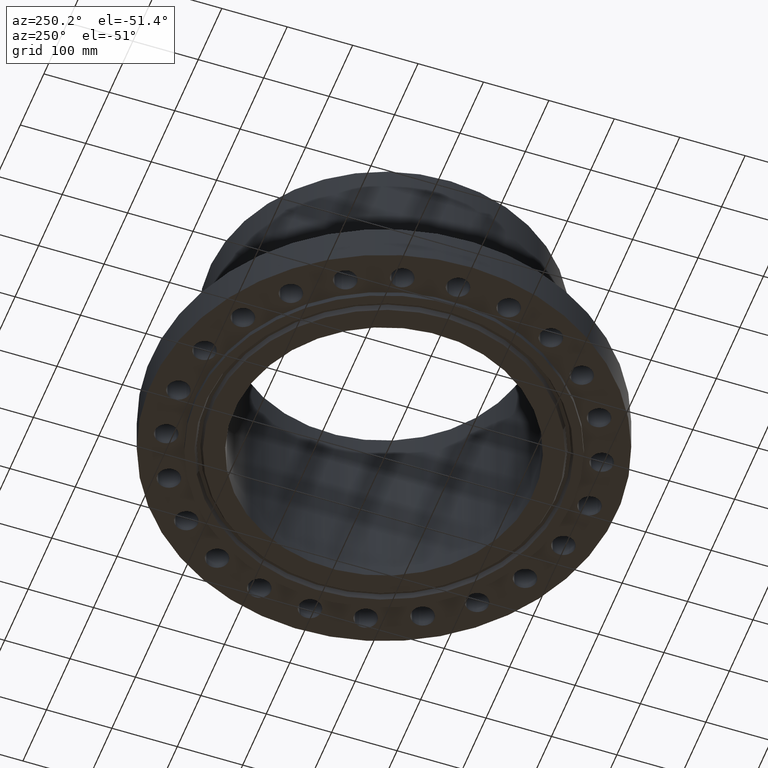
[diagram: clean part render]
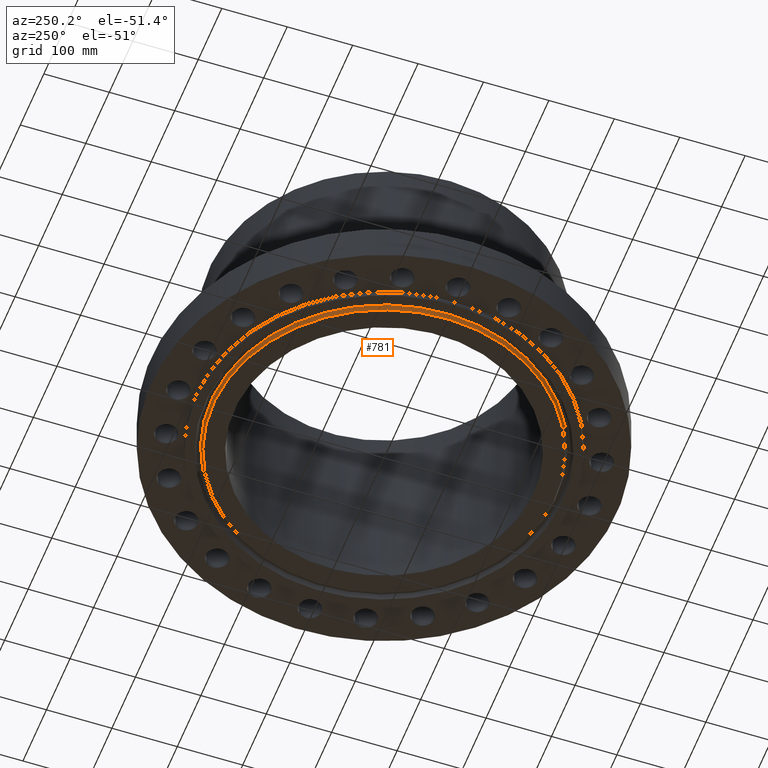
[diagram: same view with one face highlighted and labeled with its STEP entity id]
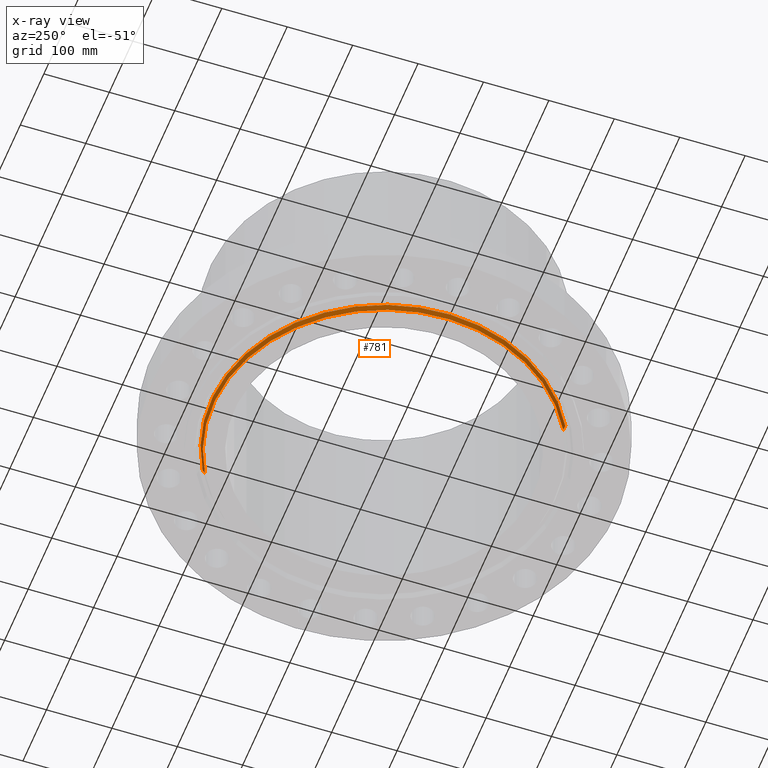
[diagram: x-ray of the same camera — body ghosted, the highlighted face saturated]
A machine part, auxiliary view. The second image highlights one B-rep face of the part: STEP entity #781.
The next image is the same camera in x-ray: the body ghosted, the highlighted face saturated — about 0% of this face is hidden behind the body in this view.
In plain terms, the highlighted conical surface has half-angle 23 deg.
Its self-contained STEP definition (entity closure, byte-faithful):
#730=AXIS2_PLACEMENT_3D('Circle Axis2P3D',#728,#729,$) ;
#754=AXIS2_PLACEMENT_3D('Cone Axis2P3D',#751,#752,#753) ;
#765=AXIS2_PLACEMENT_3D('Circle Axis2P3D',#763,#764,$) ;
#728=CARTESIAN_POINT('Axis2P3D Location',(0.,0.,-0.313000000001)) ;
#732=CARTESIAN_POINT('Vertex',(-4.92154286656,-9.00882378912,-0.313000000001)) ;
#734=CARTESIAN_POINT('Vertex',(4.92154286656,9.00882378912,-0.313000000001)) ;
#751=CARTESIAN_POINT('Axis2P3D Location',(0.,0.,-0.313000000001)) ;
#756=CARTESIAN_POINT('Line Origine',(-4.95146942836,-9.06360399304,-0.165943667509)) ;
#760=CARTESIAN_POINT('Vertex',(-4.98139599015,-9.11838419697,-0.0188873350169)) ;
#763=CARTESIAN_POINT('Axis2P3D Location',(0.,0.,-0.0188873350169)) ;
#767=CARTESIAN_POINT('Vertex',(4.98139599015,9.11838419697,-0.0188873350169)) ;
#770=CARTESIAN_POINT('Line Origine',(4.95146942836,9.06360399304,-0.165943667509)) ;
#729=DIRECTION('Axis2P3D Direction',(0.,0.,-0.0393700787402)) ;
#752=DIRECTION('Axis2P3D Direction',(-0.,-0.,0.0393700787402)) ;
#753=DIRECTION('Axis2P3D XDirection',(-0.0188750212049,-0.0345504945626,0.)) ;
#757=DIRECTION('Vector Direction',(-0.00737505833565,-0.0134999537303,0.0362403485611)) ;
#764=DIRECTION('Axis2P3D Direction',(-0.,0.,0.0393700787402)) ;
#771=DIRECTION('Vector Direction',(0.00737505833565,0.0134999537303,0.0362403485611)) ;
#758=VECTOR('Line Direction',#757,0.0393700787402) ;
#772=VECTOR('Line Direction',#771,0.0393700787402) ;
#776=ORIENTED_EDGE('',*,*,#736,.F.) ;
#777=ORIENTED_EDGE('',*,*,#762,.T.) ;
#778=ORIENTED_EDGE('',*,*,#769,.T.) ;
#779=ORIENTED_EDGE('',*,*,#774,.F.) ;
#781=ADVANCED_FACE('PartBody',(#780),#755,.T.) ;
#731=CIRCLE('generated circle',#730,10.2655) ;
#766=CIRCLE('generated circle',#765,10.3903434195) ;
#755=CONICAL_SURFACE('Cone',#754,10.2655,0.401425727959) ;
#736=EDGE_CURVE('',#733,#735,#731,.T.) ;
#762=EDGE_CURVE('',#733,#761,#759,.T.) ;
#769=EDGE_CURVE('',#761,#768,#766,.F.) ;
#774=EDGE_CURVE('',#735,#768,#773,.T.) ;
#775=EDGE_LOOP('',(#776,#777,#778,#779)) ;
#780=FACE_OUTER_BOUND('',#775,.T.) ;
#759=LINE('Line',#756,#758) ;
#773=LINE('Line',#770,#772) ;
#733=VERTEX_POINT('',#732) ;
#735=VERTEX_POINT('',#734) ;
#761=VERTEX_POINT('',#760) ;
#768=VERTEX_POINT('',#767) ;